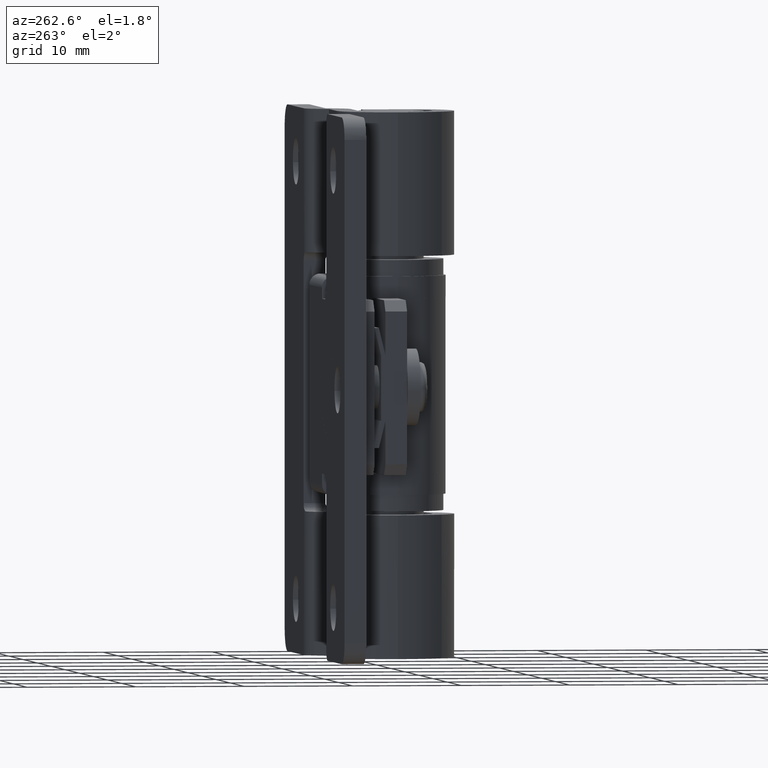
[diagram: clean part render]
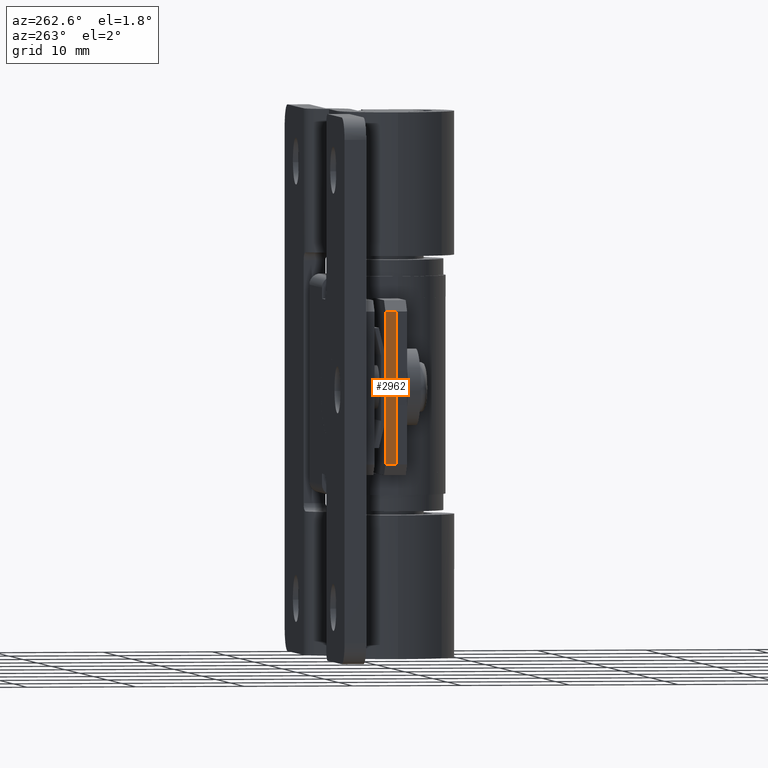
[diagram: same view with one face highlighted and labeled with its STEP entity id]
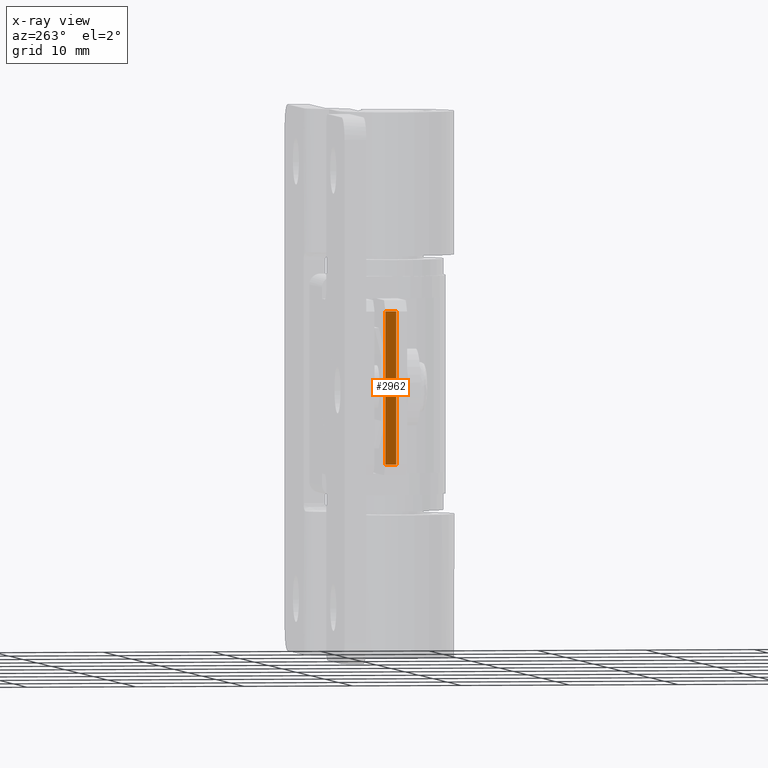
[diagram: x-ray of the same camera — body ghosted, the highlighted face saturated]
A machine part, auxiliary view. The second image highlights one B-rep face of the part: STEP entity #2962.
The next image is the same camera in x-ray: the body ghosted, the highlighted face saturated — about 0% of this face is hidden behind the body in this view.
In plain terms, the highlighted face is a freeform B-spline surface patch.
Its self-contained STEP definition (entity closure, byte-faithful):
#2631=CARTESIAN_POINT('',(-11.500000000000000,2.0,32.0));
#2632=VERTEX_POINT('',#2631);
#2640=CARTESIAN_POINT('',(-11.499999999999840,1.0,32.0));
#2641=VERTEX_POINT('',#2640);
#2642=CARTESIAN_POINT('',(-11.499999999999840,1.0,32.0));
#2643=CARTESIAN_POINT('',(-11.500000000000000,2.0,32.0));
#2644=QUASI_UNIFORM_CURVE('',1,(#2642,#2643),.UNSPECIFIED.,.F.,.U.);
#2645=EDGE_CURVE('',#2641,#2632,#2644,.T.);
#2669=CARTESIAN_POINT('',(-11.499999999999860,2.0,18.0));
#2670=VERTEX_POINT('',#2669);
#2683=CARTESIAN_POINT('',(-11.499999999999840,1.0,18.0));
#2684=VERTEX_POINT('',#2683);
#2690=CARTESIAN_POINT('',(-11.499999999999860,2.0,18.0));
#2691=CARTESIAN_POINT('',(-11.499999999999840,1.0,18.0));
#2692=QUASI_UNIFORM_CURVE('',1,(#2690,#2691),.UNSPECIFIED.,.F.,.U.);
#2693=EDGE_CURVE('',#2670,#2684,#2692,.T.);
#2928=CARTESIAN_POINT('',(-11.499999999999840,1.0,18.0));
#2929=CARTESIAN_POINT('',(-11.499999999999840,1.0,32.0));
#2930=QUASI_UNIFORM_CURVE('',1,(#2928,#2929),.UNSPECIFIED.,.F.,.U.);
#2931=EDGE_CURVE('',#2684,#2641,#2930,.T.);
#2947=CARTESIAN_POINT('',(-11.499999999999840,0.950050001938194,17.300700027134710));
#2948=CARTESIAN_POINT('',(-11.499999999999840,0.950050001938194,32.699300348374543));
#2949=CARTESIAN_POINT('',(-11.499999999999840,2.049950024883896,17.300700027134710));
#2950=CARTESIAN_POINT('',(-11.499999999999840,2.049950024883896,32.699300348374543));
#2951=B_SPLINE_SURFACE_WITH_KNOTS('',1,1,((#2947,#2949),(#2948,#2950)),.UNSPECIFIED.,.F.,.F.,.U.,(2,2),(2,2),(0.0,15.398600321239829),(0.041708334948495,0.958291687403247),.UNSPECIFIED.);
#2952=CARTESIAN_POINT('',(-11.499999999999860,2.0,18.0));
#2953=CARTESIAN_POINT('',(-11.500000000000000,2.0,32.0));
#2954=QUASI_UNIFORM_CURVE('',1,(#2952,#2953),.UNSPECIFIED.,.F.,.U.);
#2955=EDGE_CURVE('',#2670,#2632,#2954,.T.);
#2956=ORIENTED_EDGE('',*,*,#2955,.F.);
#2957=ORIENTED_EDGE('',*,*,#2693,.T.);
#2958=ORIENTED_EDGE('',*,*,#2931,.T.);
#2959=ORIENTED_EDGE('',*,*,#2645,.T.);
#2960=EDGE_LOOP('',(#2956,#2957,#2958,#2959));
#2961=FACE_OUTER_BOUND('',#2960,.T.);
#2962=ADVANCED_FACE('',(#2961),#2951,.T.);